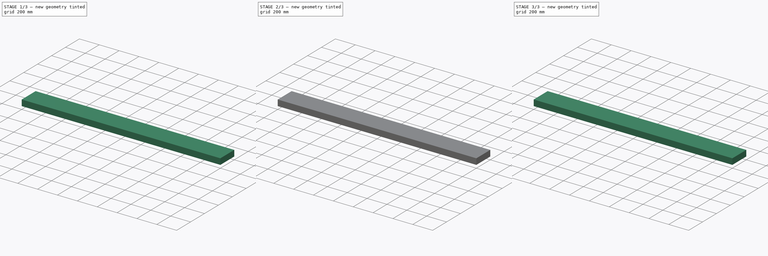
[diagram: build sequence overview — one tinted view per stage of 3, left to right]
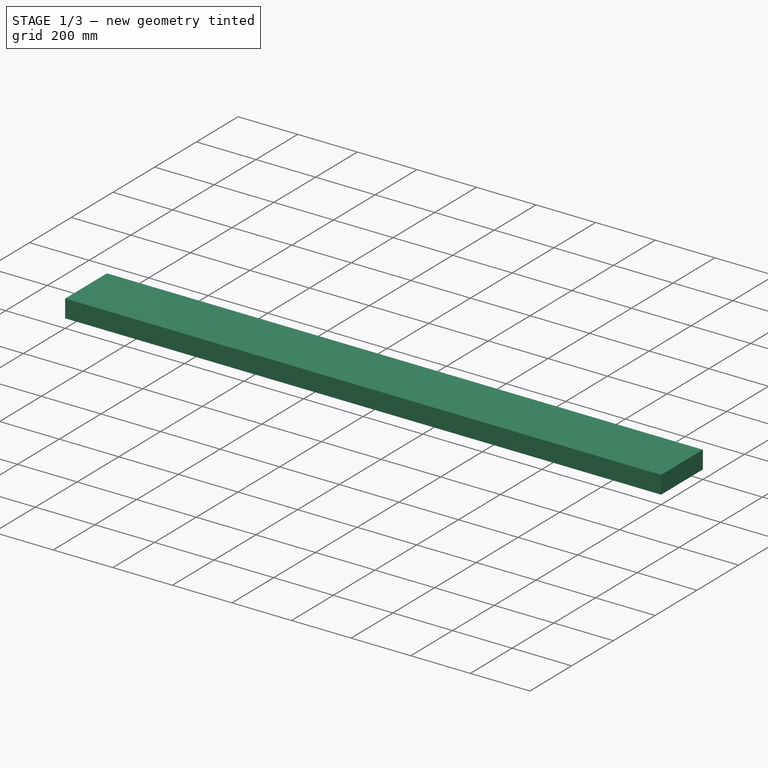
[diagram: stage 1 of 3 — iso view after this stage's code; geometry added in this stage tinted green]
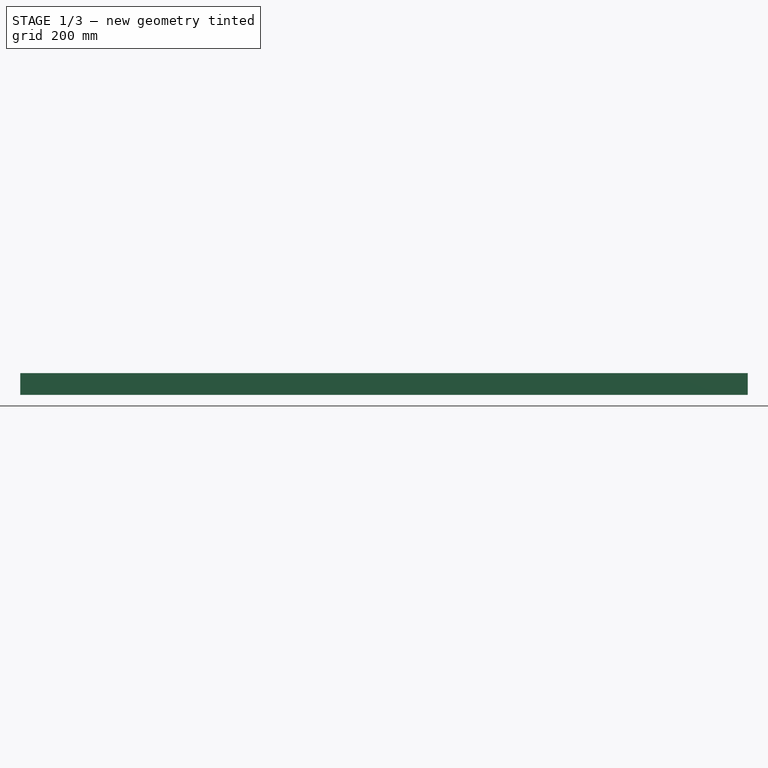
[diagram: stage 1 of 3 — front view after this stage's code; geometry added in this stage tinted green]
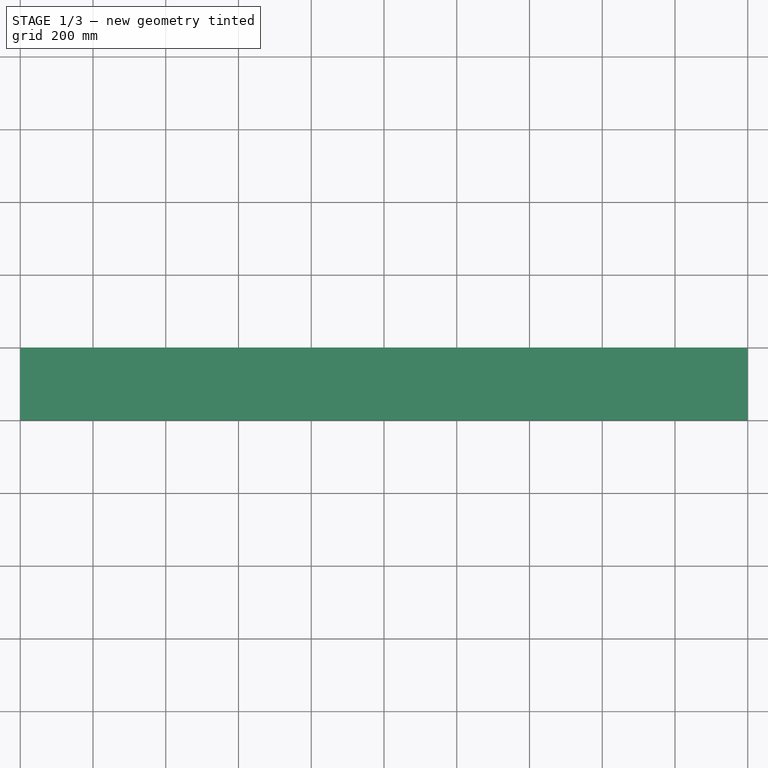
[diagram: stage 1 of 3 — top view after this stage's code; geometry added in this stage tinted green]
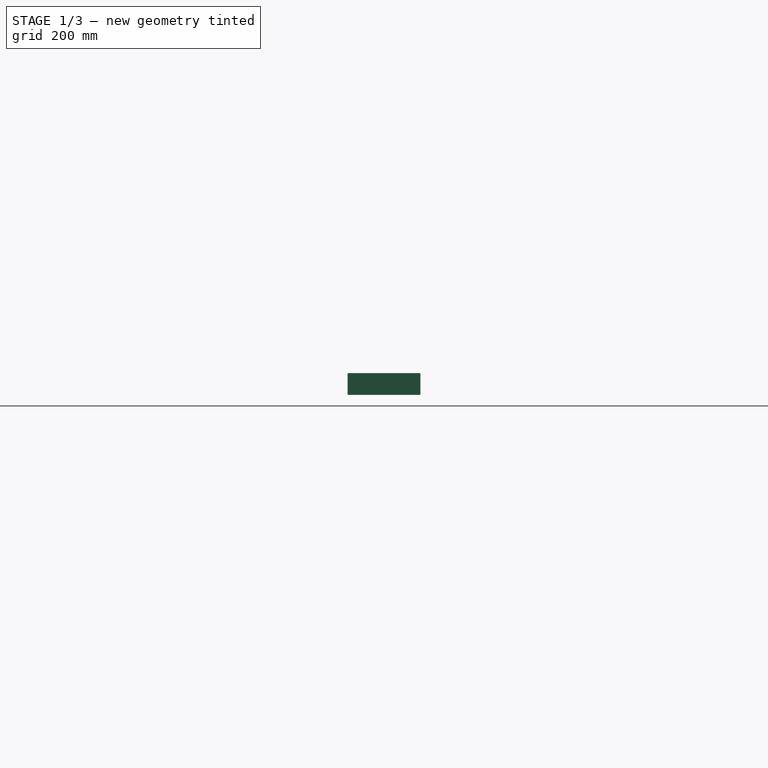
[diagram: stage 1 of 3 — right view after this stage's code; geometry added in this stage tinted green]
FCSTD DOCUMENT  (FreeCAD 0.18.4R)
Label: Bar2
License: All rights reserved
LicenseURL: http://en.wikipedia.org/wiki/All_rights_reserved
objects: Part::FeaturePython×3, Sketcher::SketchObject×2, PartDesign::Pad×2, PartDesign::Body×1, Surface::Filling×1, App::DocumentObjectGroup×1
note: 11 computed .brp shape members not serialized (recipe doc carries the construction recipe); baked Part::Feature solids carry a one-line shape summary decoded from their .brp

FEATURE [Sketcher::SketchObject] Sketch
  MapMode = 5
  Support = -> [XY_Plane]
  sketch-geometry (4):
    g0: LineSegment StartX=0 StartY=0 StartZ=0 EndX=1000 EndY=0 EndZ=0
    g1: LineSegment StartX=0 StartY=200 StartZ=0 EndX=0 EndY=0 EndZ=0
    g2: LineSegment StartX=0 StartY=200 StartZ=0 EndX=1000 EndY=200 EndZ=0
    g3: LineSegment StartX=1000 StartY=200 StartZ=0 EndX=1000 EndY=0 EndZ=0
  constraints (12):
    c: Horizontal(g0)
    c: Vertical(g1)
    c: Horizontal(g2)
    c: Vertical(g3)
    c: DistanceX(g0,g0) = 1000
    c: Equal(g0,g2)
    c: DistanceY(g1,g1) = 200
    c: Equal(g1,g3)
    c: Coincident(g1,g0)
    c: Coincident(g1,g2)
    c: Coincident(g3,g0)
    c: Coincident(g0,g-1)
FEATURE [PartDesign::Pad] Pad
  Length = 60
  Length2 = 100
  Profile = -> Sketch
  Type = 0
FEATURE [Sketcher::SketchObject] Sketch001
  MapMode = 5
  Placement = pos=(1000,0,0) rot=(0.57735,0.57735,0.57735;2.0944rad)
  Support = -> [Pad]
  sketch-geometry (4):
    g0: LineSegment StartX=0 StartY=0 StartZ=0 EndX=200 EndY=0 EndZ=0
    g1: LineSegment StartX=200 StartY=0 StartZ=0 EndX=200 EndY=60 EndZ=0
    g2: LineSegment StartX=200 StartY=60 StartZ=0 EndX=0 EndY=60 EndZ=0
    g3: LineSegment StartX=0 StartY=60 StartZ=0 EndX=0 EndY=0 EndZ=0
  constraints (11):
    c: Coincident(g0,g1)
    c: Coincident(g1,g2)
    c: Coincident(g2,g3)
    c: Coincident(g3,g0)
    c: Horizontal(g0)
    c: Vertical(g1)
    c: Equal(g3,g1)
    c: Equal(g2,g0)
    c: DistanceY(g3,g3) = 60
    c: DistanceX(g2,g2) = 200
    c: Coincident(g-1,g0)
FEATURE [PartDesign::Pad] Pad001
  BaseFeature = -> Pad
  Length = 1000
  Length2 = 100
  Profile = -> Sketch001
  Type = 0
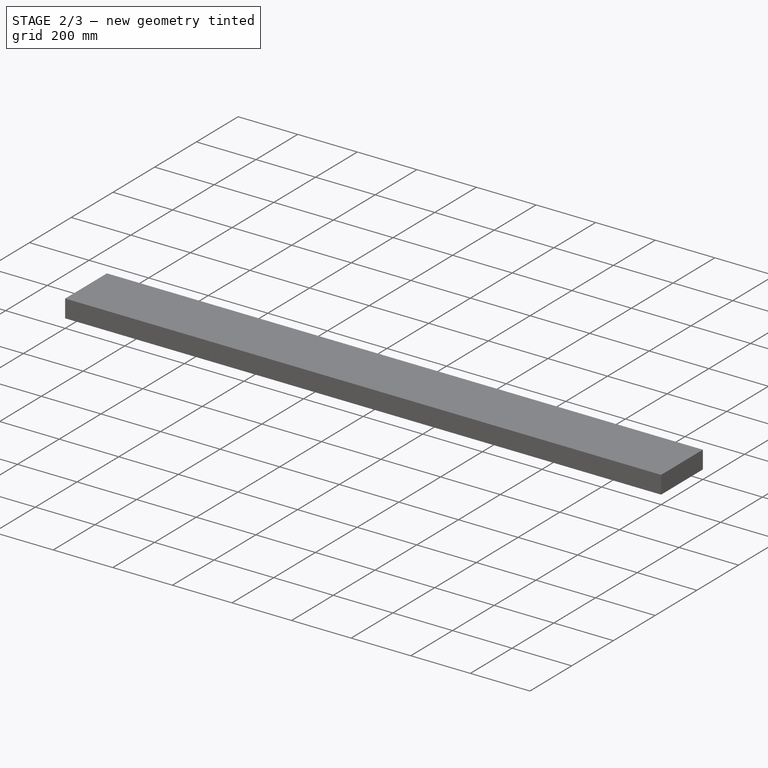
[diagram: stage 2 of 3 — iso view after this stage's code; geometry added in this stage tinted green]
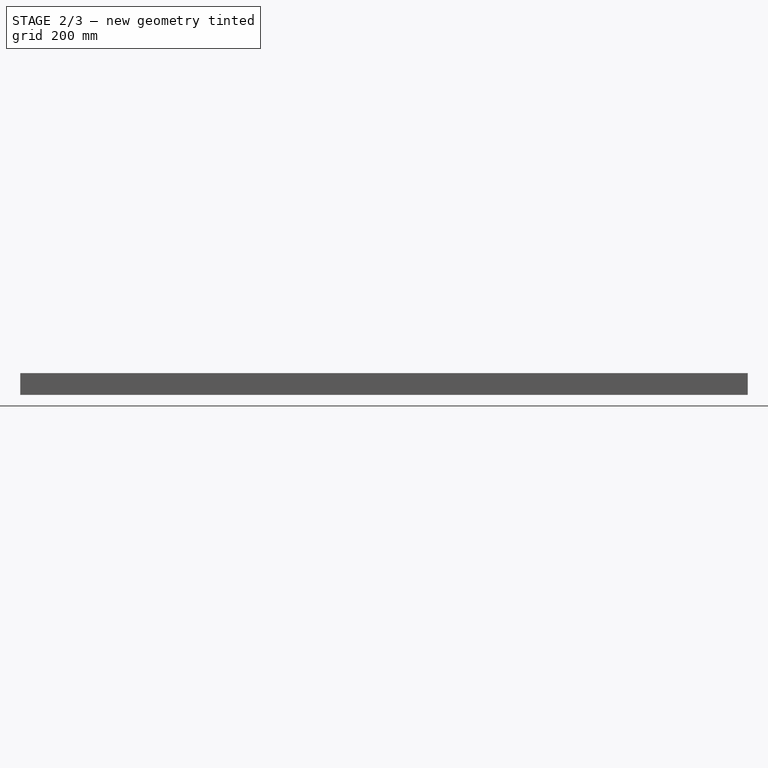
[diagram: stage 2 of 3 — front view after this stage's code; geometry added in this stage tinted green]
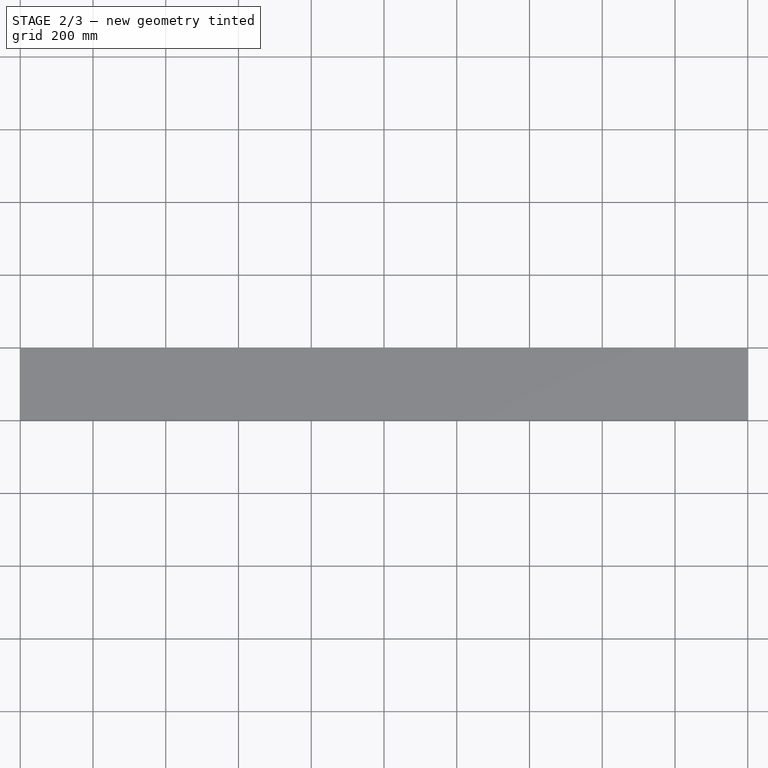
[diagram: stage 2 of 3 — top view after this stage's code; geometry added in this stage tinted green]
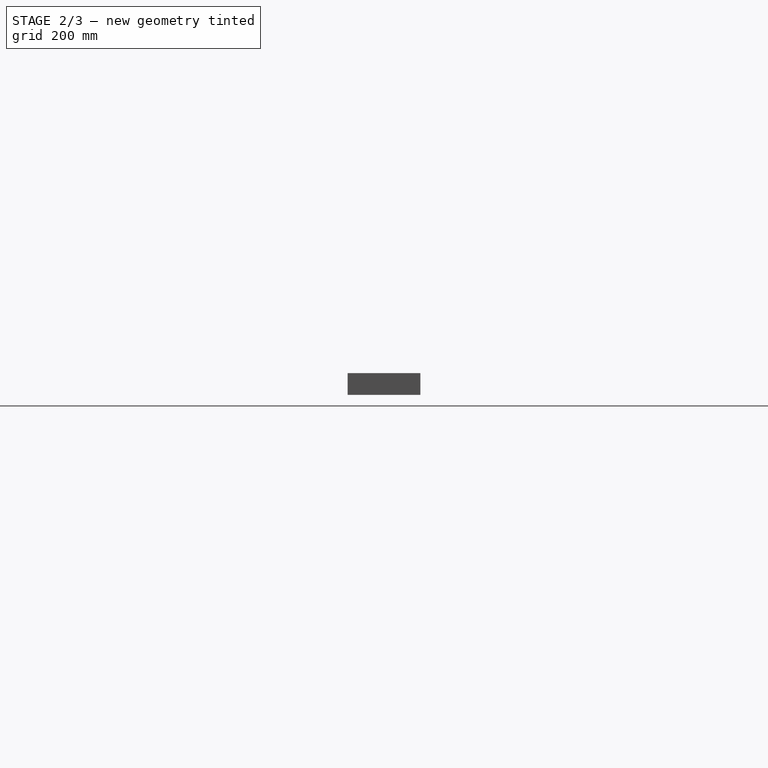
[diagram: stage 2 of 3 — right view after this stage's code; geometry added in this stage tinted green]
FEATURE [PartDesign::Body] Body
  Group = -> [Sketch,Pad,Sketch001,Pad001]
  Origin = -> Origin
FEATURE [Surface::Filling] Surface
  Anisotropy = false
  BoundaryEdges = -> [Pad001]
  BoundaryOrder = [0,0,0,0]
  Degree = 3
  Iterations = 2
  MaximumDegree = 8
  MaximumSegments = 9
  PointsOnCurve = 15
  TolAngular = 0.01
  TolCurvature = 0.1
  Tolerance2d = 1e-05
  Tolerance3d = 0.0001
FEATURE [Part::FeaturePython] Slice  # WARN: FeaturePython — macro-defined, semantics opaque (R4)
  Base = -> Pad001
  Mode = 1
  Tolerance = 0
  Tools = -> [Surface]
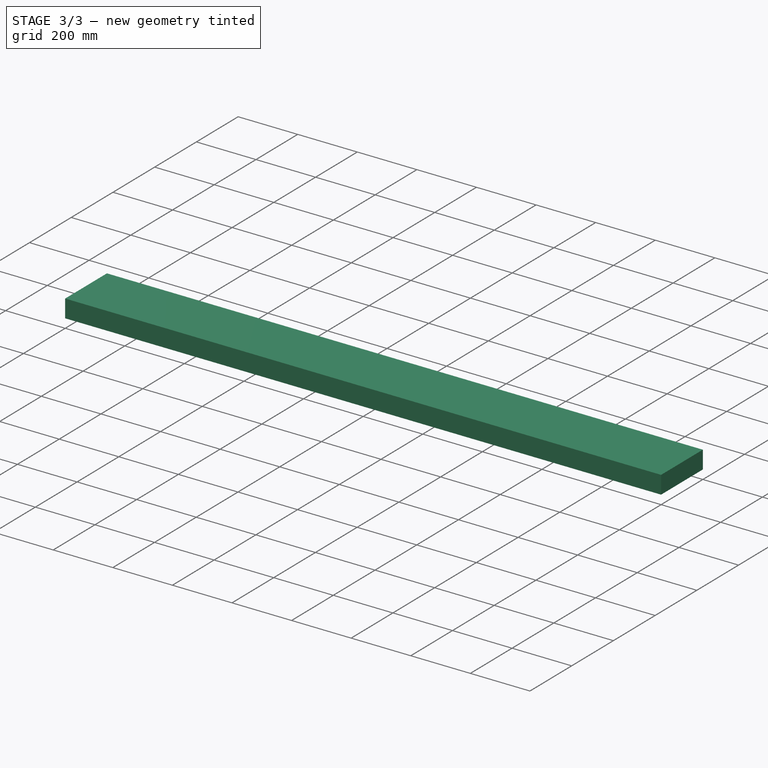
[diagram: stage 3 of 3 — iso view after this stage's code; geometry added in this stage tinted green]
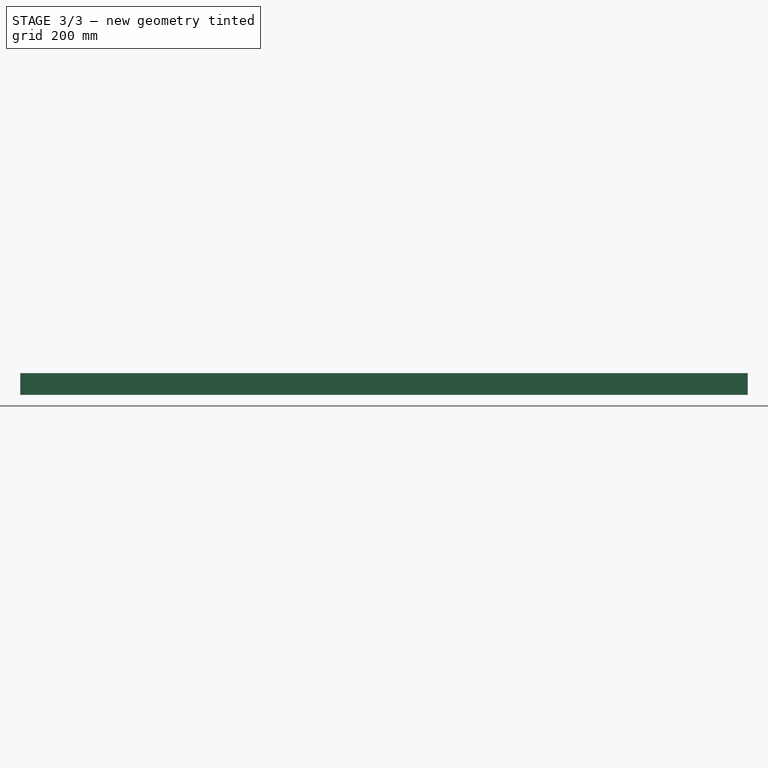
[diagram: stage 3 of 3 — front view after this stage's code; geometry added in this stage tinted green]
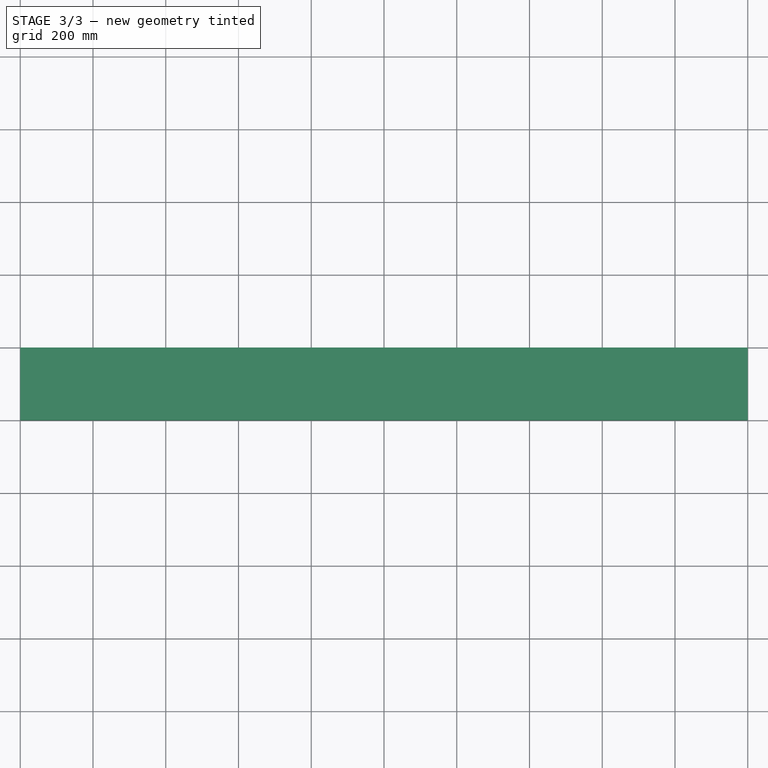
[diagram: stage 3 of 3 — top view after this stage's code; geometry added in this stage tinted green]
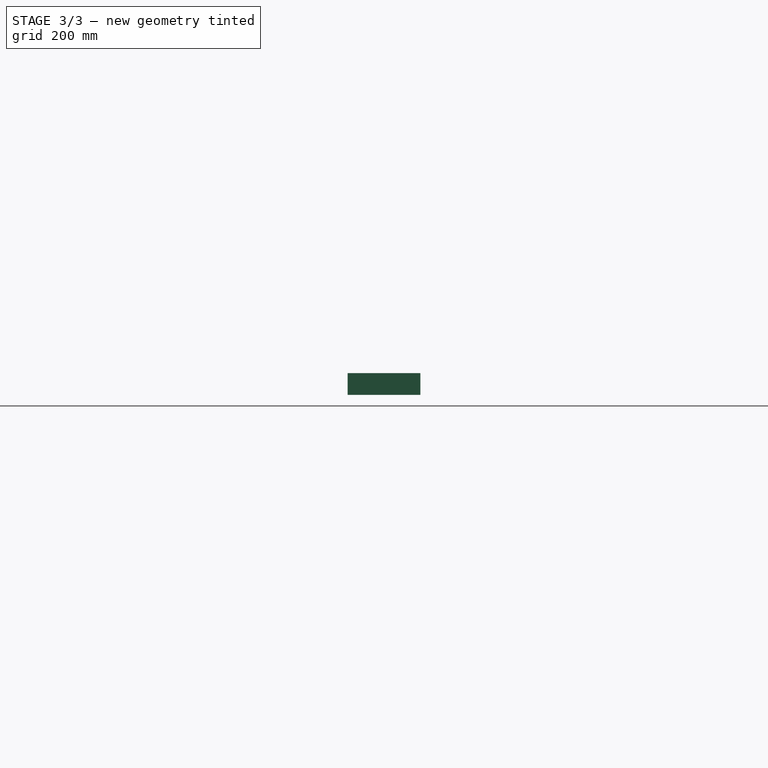
[diagram: stage 3 of 3 — right view after this stage's code; geometry added in this stage tinted green]
FEATURE [Part::FeaturePython] Slice_child0  label="Slice.0"  # WARN: FeaturePython — macro-defined, semantics opaque (R4)
  Base = -> Slice
  FilterType = 1
  Invert = false
  OverrideMaxVal = 0
  WindowFrom = 80
  WindowTo = 100
  items = 0
FEATURE [Part::FeaturePython] Slice_child1  label="Slice.1"  # WARN: FeaturePython — macro-defined, semantics opaque (R4)
  Base = -> Slice
  FilterType = 1
  Invert = false
  OverrideMaxVal = 0
  WindowFrom = 80
  WindowTo = 100
  items = 1
FEATURE [App::DocumentObjectGroup] GrExplode_Slice  label="Exploded Slice"
  Group = -> [Slice_child0,Slice_child1]
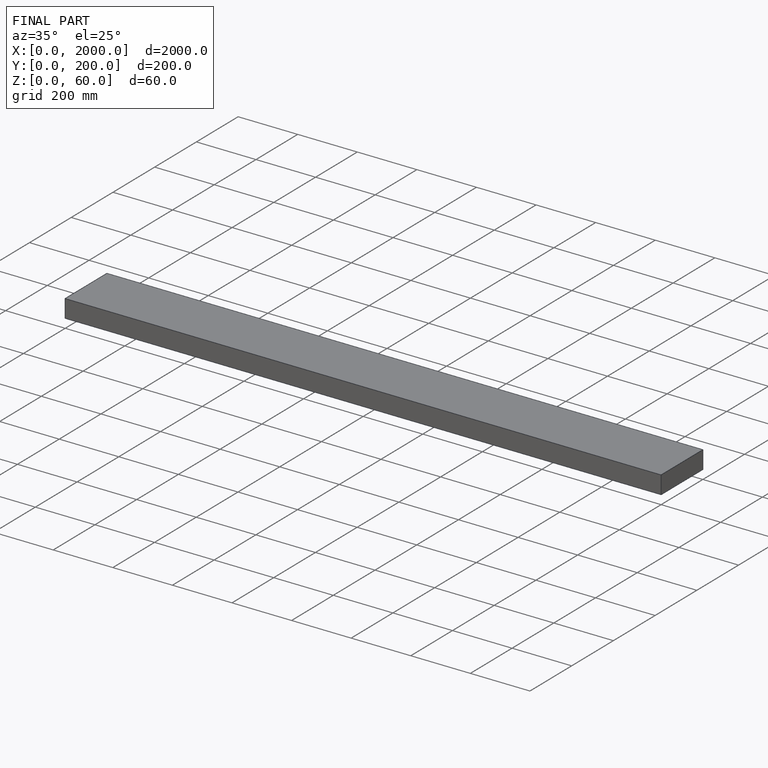
[diagram: finished part — iso view with bounding-box wireframe]
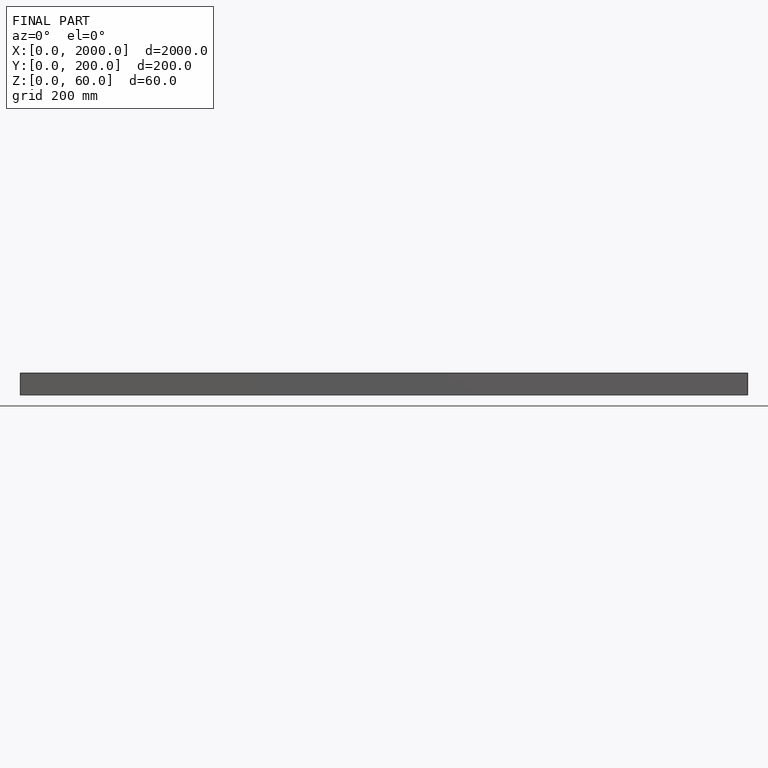
[diagram: finished part — front view with bounding-box wireframe]
